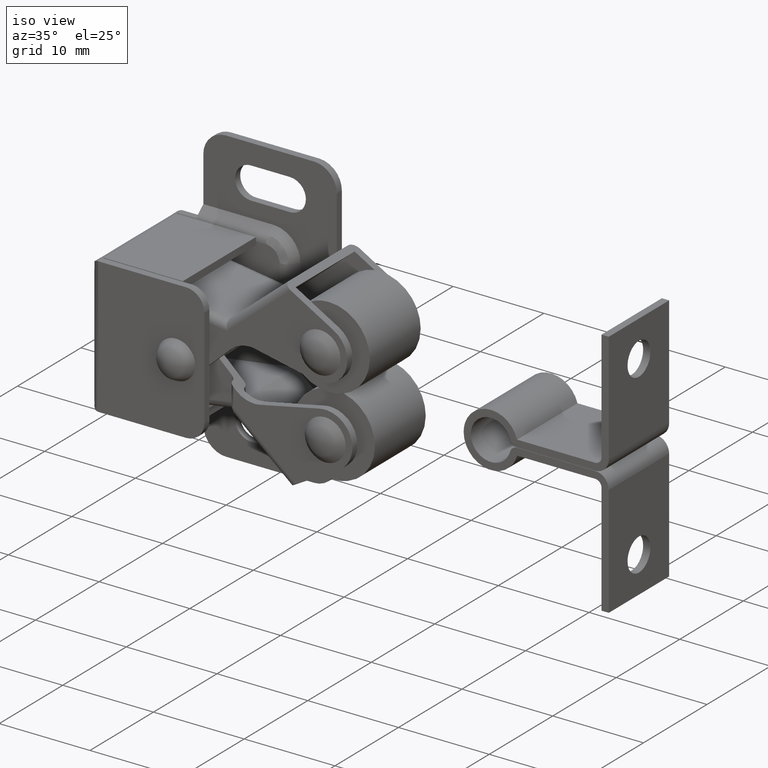
[diagram: clean part render]
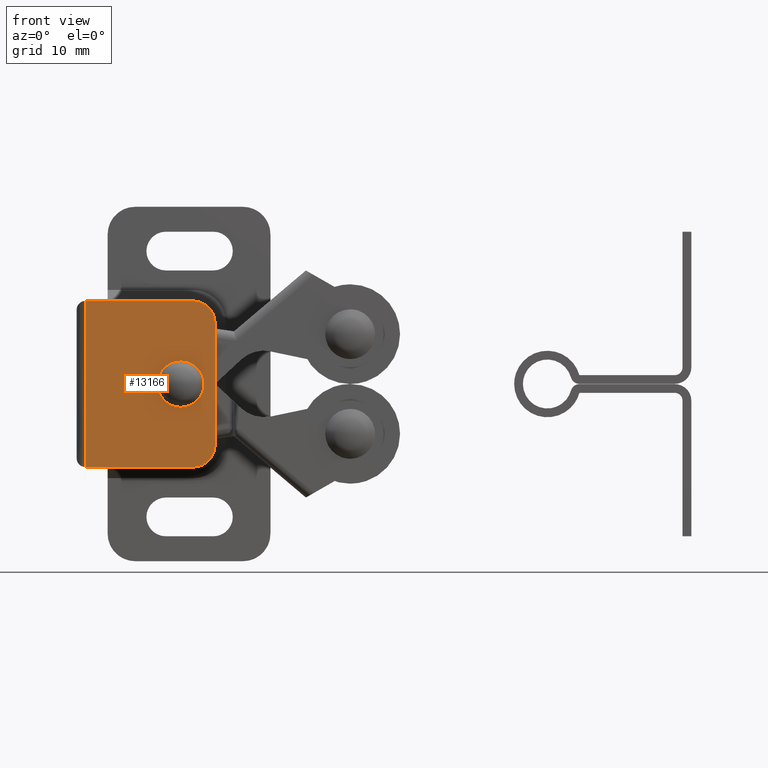
[diagram: tour spotlight — one face highlighted and labeled with its STEP entity id]
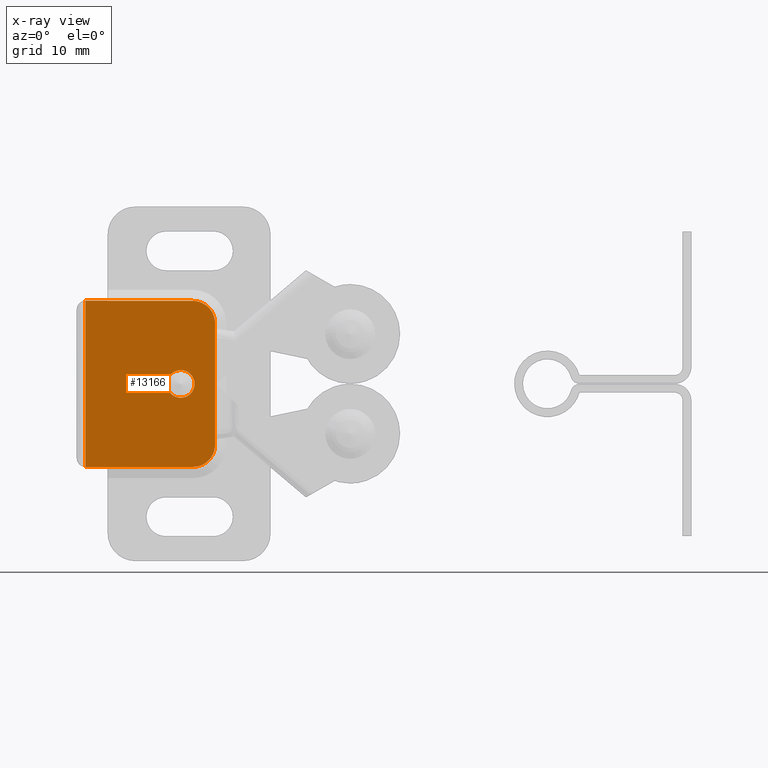
[diagram: x-ray of the same camera — body ghosted, this tour face saturated]
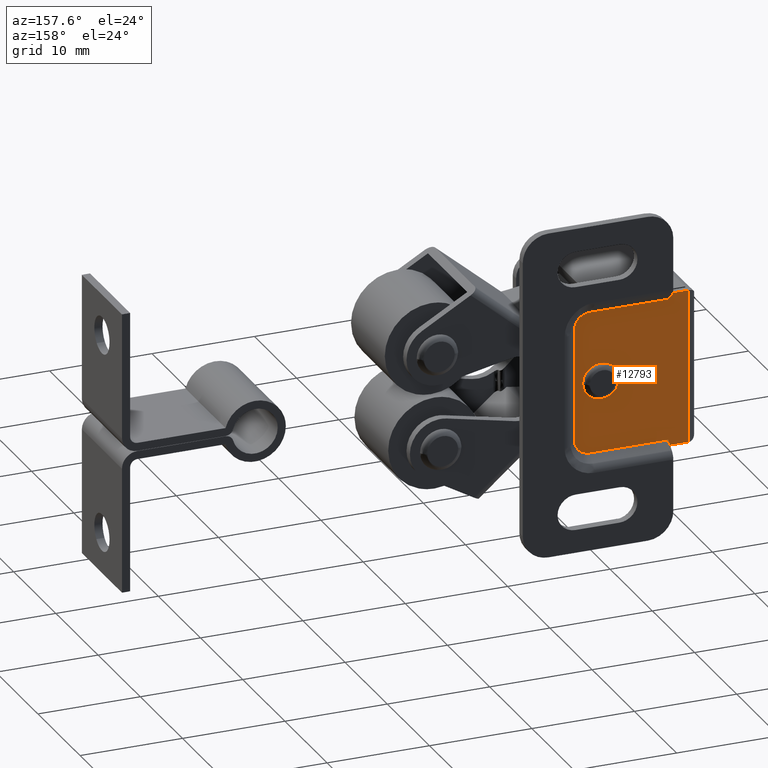
[diagram: tour spotlight — one face highlighted and labeled with its STEP entity id]
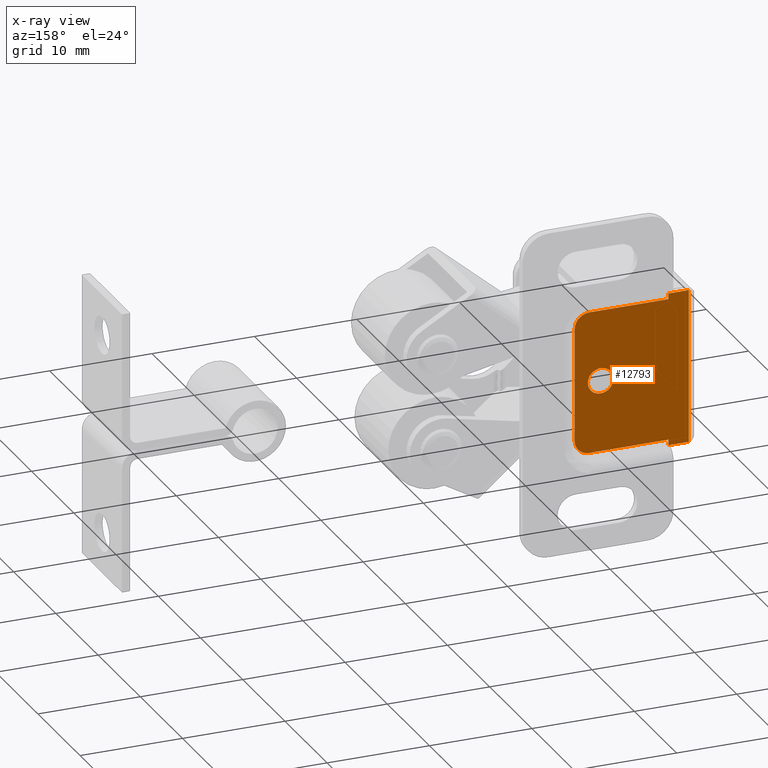
[diagram: x-ray of the same camera — body ghosted, this tour face saturated]
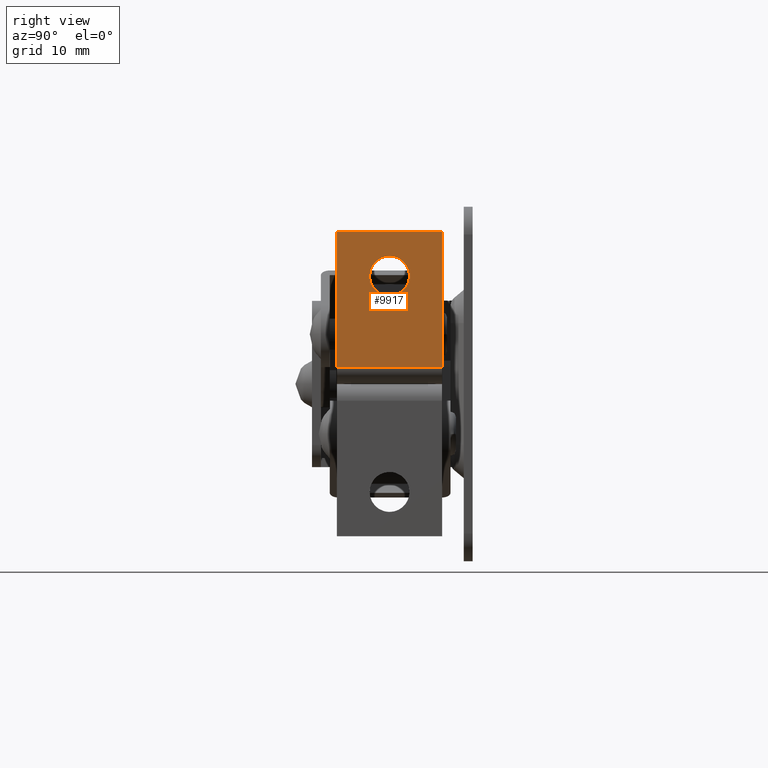
[diagram: tour spotlight — one face highlighted and labeled with its STEP entity id]
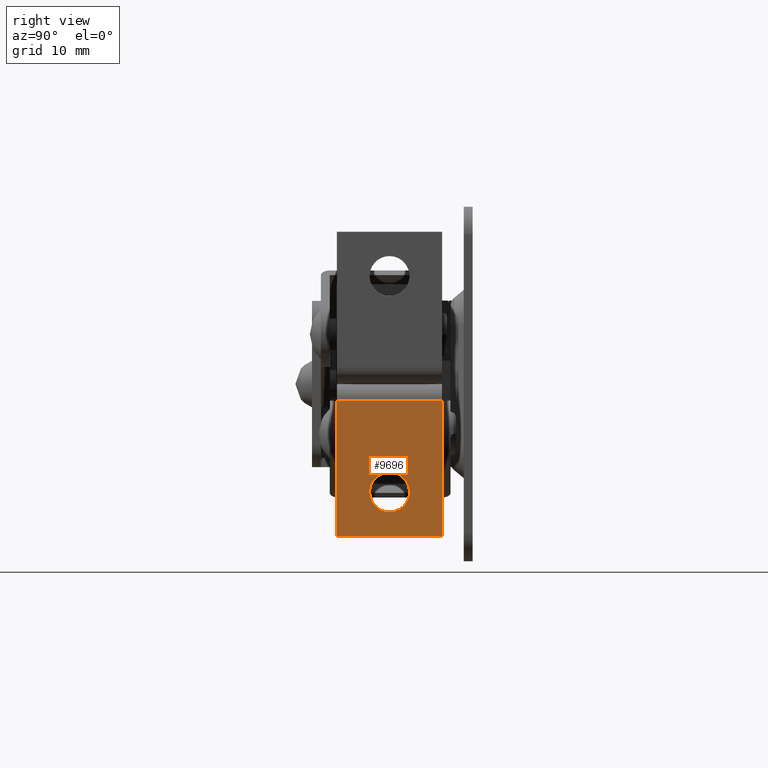
[diagram: tour spotlight — one face highlighted and labeled with its STEP entity id]
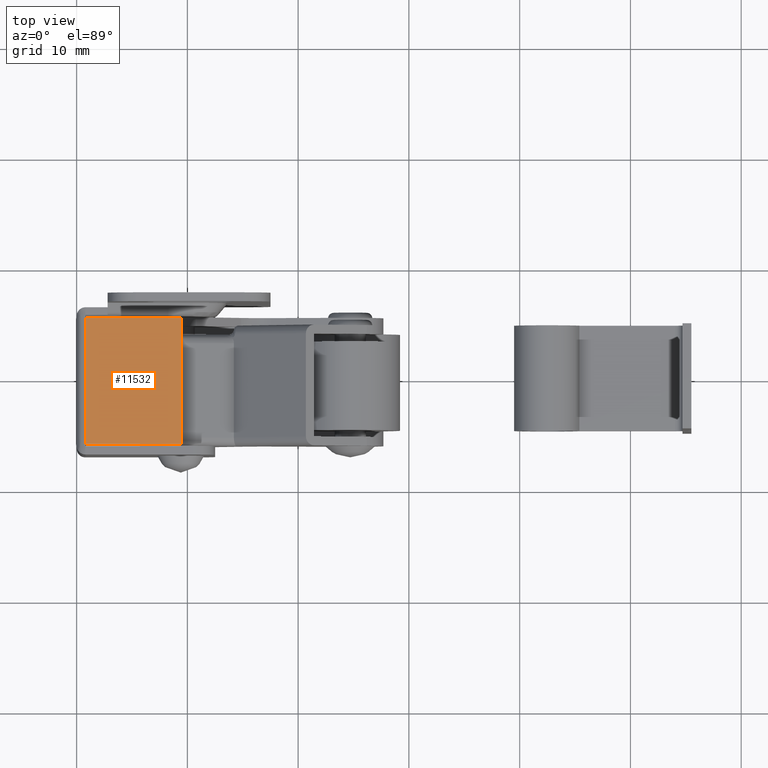
[diagram: tour spotlight — one face highlighted and labeled with its STEP entity id]
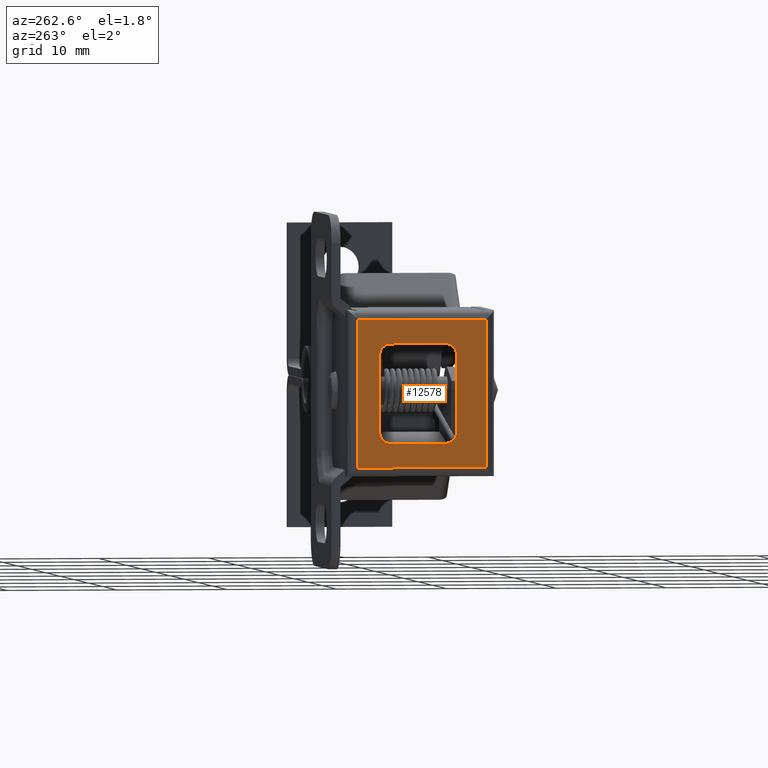
[diagram: tour spotlight — one face highlighted and labeled with its STEP entity id]
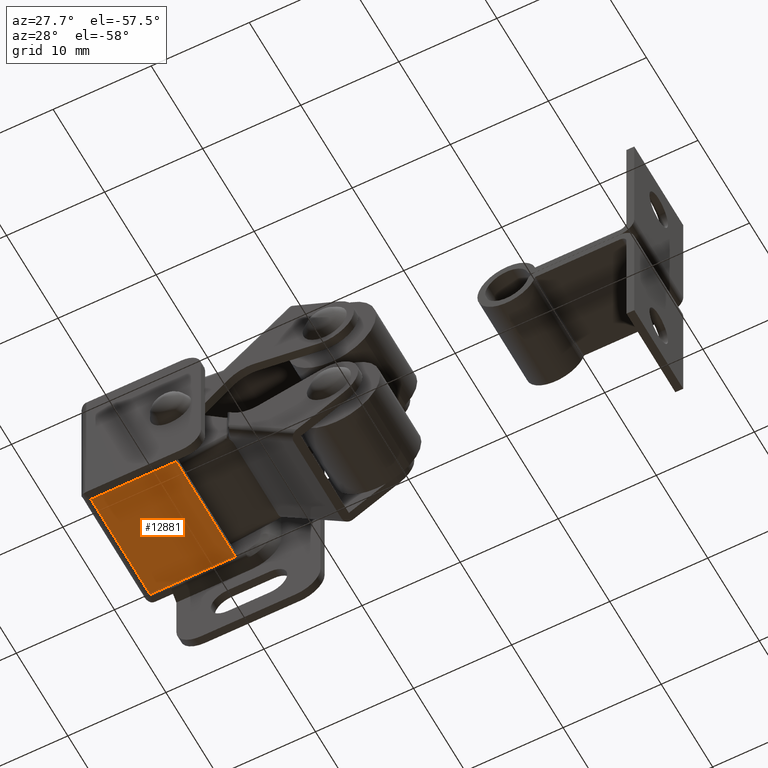
[diagram: tour spotlight — one face highlighted and labeled with its STEP entity id]
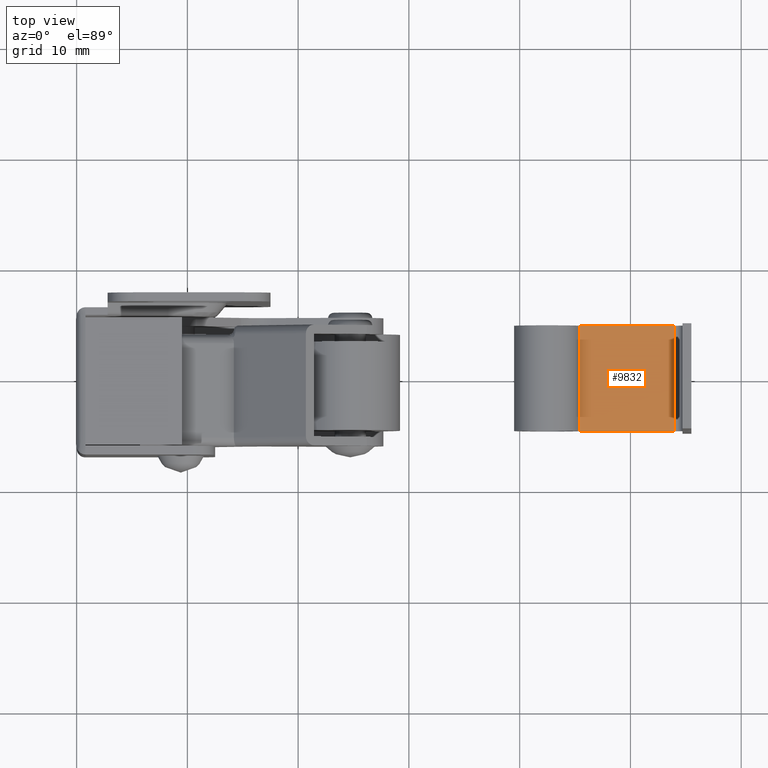
[diagram: tour spotlight — one face highlighted and labeled with its STEP entity id]
A machine part: a face-by-face anatomy tour. The part has 238 B-rep faces; the first image is the clean iso view, then the 8 largest visible faces are spotlighted one at a time (largest first), each with its STEP entity span.

Face 1 — front view, entity #13166. An x-ray twin of the same camera follows (body ghosted, this face saturated) — the face is partly hidden behind the body. In plain terms, the highlighted face is a freeform B-spline surface patch.
Definition (entity closure, byte-faithful):
#9951=CARTESIAN_POINT('',(10.260451896368879,-6.999999999999900,-0.906717720188446));
#9952=VERTEX_POINT('',#9951);
#9958=CARTESIAN_POINT('',(10.650008999998979,-6.999999999999900,0.000001598966545));
#9959=VERTEX_POINT('',#9958);
#9960=CARTESIAN_POINT('',(10.260451896368879,-6.999999999999900,-0.906717720188446));
#9961=CARTESIAN_POINT('',(10.375552104167820,-6.999999999999905,-0.797697708605429));
#9962=CARTESIAN_POINT('',(10.575754715029470,-6.999999999999894,-0.517591940662151));
#9963=CARTESIAN_POINT('',(10.650253041269400,-6.999999999999897,-0.179682385088657));
#9964=CARTESIAN_POINT('',(10.650008999998979,-6.999999999999900,0.000001598966545));
#9965=B_SPLINE_CURVE_WITH_KNOTS('',3,(#9960,#9961,#9962,#9963,#9964),.UNSPECIFIED.,.F.,.U.,(4,1,4),(0.000000036804504,0.475555848043880,1.014501313537581),.UNSPECIFIED.);
#9966=EDGE_CURVE('',#9952,#9959,#9965,.T.);
#9968=CARTESIAN_POINT('',(9.400009000000001,-6.999999999999901,1.250000000000000));
#9969=VERTEX_POINT('',#9968);
#9970=CARTESIAN_POINT('',(10.650008999998979,-6.999999999999900,0.000001598966545));
#9971=CARTESIAN_POINT('',(10.650048516078391,-6.999999999999906,0.112495065539745));
#9972=CARTESIAN_POINT('',(10.623587687548760,-6.999999999999896,0.306773118980511));
#9973=CARTESIAN_POINT('',(10.508974957360570,-6.999999999999905,0.604008709195143));
#9974=CARTESIAN_POINT('',(10.300682598218041,-6.999999999999912,0.899895962662093));
#9975=CARTESIAN_POINT('',(9.997254054696624,-6.999999999999855,1.119239407872755));
#9976=CARTESIAN_POINT('',(9.676108736355243,-6.999999999999978,1.229564850944364));
#9977=CARTESIAN_POINT('',(9.492047348585006,-6.999999999999819,1.250015032420264));
#9978=CARTESIAN_POINT('',(9.400009000000001,-6.999999999999901,1.250000000000000));
#9979=B_SPLINE_CURVE_WITH_KNOTS('',3,(#9970,#9971,#9972,#9973,#9974,#9975,#9976,#9977,#9978),.UNSPECIFIED.,.F.,.U.,(4,1,1,1,1,1,4),(0.000000130915895,0.337474822905873,0.582930732258959,0.951109413071355,1.411296304488773,1.687424746442384,1.963543779201057),.UNSPECIFIED.);
#9980=EDGE_CURVE('',#9959,#9969,#9979,.T.);
#9982=CARTESIAN_POINT('',(8.539566103631120,-6.999999999999901,0.906717720188447));
#9983=VERTEX_POINT('',#9982);
#9984=CARTESIAN_POINT('',(9.400009000000001,-6.999999999999901,1.250000000000000));
#9985=CARTESIAN_POINT('',(9.231923357712031,-6.999999999999885,1.250206807994212));
#9986=CARTESIAN_POINT('',(8.915771263836483,-6.999999999999922,1.185141089100294));
#9987=CARTESIAN_POINT('',(8.647060157619160,-6.999999999999894,1.008891805236744));
#9988=CARTESIAN_POINT('',(8.539566103631120,-6.999999999999901,0.906717720188447));
#9989=B_SPLINE_CURVE_WITH_KNOTS('',3,(#9984,#9985,#9986,#9987,#9988),.UNSPECIFIED.,.F.,.U.,(4,1,4),(0.000000035580906,0.504170169241840,0.949044816129754),.UNSPECIFIED.);
#9990=EDGE_CURVE('',#9969,#9983,#9989,.T.);
#10077=CARTESIAN_POINT('',(8.150009000001024,-6.999999999999901,-0.000001598966540));
#10078=VERTEX_POINT('',#10077);
#10079=CARTESIAN_POINT('',(8.539566103631120,-6.999999999999901,0.906717720188447));
#10080=CARTESIAN_POINT('',(8.455217562782295,-6.999999999999909,0.826727809051676));
#10081=CARTESIAN_POINT('',(8.329046496842885,-6.999999999999896,0.668042886169320));
#10082=CARTESIAN_POINT('',(8.186974719049500,-6.999999999999901,0.359243666924946));
#10083=CARTESIAN_POINT('',(8.149932962618596,-6.999999999999900,0.137389410625462));
#10084=CARTESIAN_POINT('',(8.150009000001024,-6.999999999999901,-0.000001598966540));
#10085=B_SPLINE_CURVE_WITH_KNOTS('',3,(#10079,#10080,#10081,#10082,#10083,#10084),.UNSPECIFIED.,.F.,.U.,(4,1,1,4),(0.000000036804655,0.348736204169615,0.602350686728388,1.014501313537577),.UNSPECIFIED.);
#10086=EDGE_CURVE('',#9983,#10078,#10085,.T.);
#10088=CARTESIAN_POINT('',(9.400009000000001,-6.999999999999901,-1.250000000000000));
#10089=VERTEX_POINT('',#10088);
#10090=CARTESIAN_POINT('',(8.150009000001024,-6.999999999999901,-0.000001598966540));
#10091=CARTESIAN_POINT('',(8.149994109984563,-6.999999999999903,-0.092039528301709));
#10092=CARTESIAN_POINT('',(8.170444115492442,-6.999999999999898,-0.276102234195852));
#10093=CARTESIAN_POINT('',(8.280770705223350,-6.999999999999909,-0.597245879257343));
#10094=CARTESIAN_POINT('',(8.500113533591998,-6.999999999999902,-0.900675961966943));
#10095=CARTESIAN_POINT('',(8.796002205438487,-6.999999999999894,-1.108965615604990));
#10096=CARTESIAN_POINT('',(9.093236805991062,-6.999999999999904,-1.223579656686771));
#10097=CARTESIAN_POINT('',(9.287515503426661,-6.999999999999878,-1.250039805766860));
#10098=CARTESIAN_POINT('',(9.400009000000001,-6.999999999999901,-1.250000000000000));
#10099=B_SPLINE_CURVE_WITH_KNOTS('',3,(#10090,#10091,#10092,#10093,#10094,#10095,#10096,#10097,#10098),.UNSPECIFIED.,.F.,.U.,(4,1,1,1,1,1,4),(0.000000130914297,0.276120640592534,0.552247336763290,1.012434347967933,1.380613469423143,1.626068974840289,1.963543779201059),.UNSPECIFIED.);
#10100=EDGE_CURVE('',#10078,#10089,#10099,.T.);
#10102=CARTESIAN_POINT('',(9.400009000000001,-6.999999999999901,-1.250000000000000));
#10103=CARTESIAN_POINT('',(9.528533272338404,-6.999999999999905,-1.250066000744778));
#10104=CARTESIAN_POINT('',(9.745974295358957,-6.999999999999917,-1.216151803033096));
#10105=CARTESIAN_POINT('',(10.037086900865679,-6.999999999999879,-1.087802895850259));
#10106=CARTESIAN_POINT('',(10.188756233057450,-6.999999999999913,-0.974783487670822));
#10107=CARTESIAN_POINT('',(10.260451896368879,-6.999999999999900,-0.906717720188446));
#10108=B_SPLINE_CURVE_WITH_KNOTS('',3,(#10102,#10103,#10104,#10105,#10106,#10107),.UNSPECIFIED.,.F.,.U.,(4,1,1,4),(0.000000035580945,0.385556276290383,0.652464573457703,0.949044816129755),.UNSPECIFIED.);
#10109=EDGE_CURVE('',#10089,#9952,#10108,.T.);
#11997=CARTESIAN_POINT('',(0.800000000000023,-6.999999999999890,7.500000000000000));
#11998=VERTEX_POINT('',#11997);
#12614=CARTESIAN_POINT('',(10.499999895280260,-6.999999999999901,7.500000000000000));
#12615=VERTEX_POINT('',#12614);
#12616=CARTESIAN_POINT('',(10.499999895280260,-6.999999999999901,7.500000000000000));
#12617=CARTESIAN_POINT('',(0.800000000000023,-6.999999999999890,7.500000000000000));
#12618=QUASI_UNIFORM_CURVE('',1,(#12616,#12617),.UNSPECIFIED.,.F.,.U.);
#12619=EDGE_CURVE('',#12615,#11998,#12618,.T.);
#12929=CARTESIAN_POINT('',(0.800000000000023,-7.0,-7.500000000000000));
#12930=VERTEX_POINT('',#12929);
#12944=CARTESIAN_POINT('',(0.800000000000023,-6.999999999999890,7.500000000000000));
#12945=CARTESIAN_POINT('',(0.800000000000023,-7.0,-7.500000000000000));
#12946=QUASI_UNIFORM_CURVE('',1,(#12944,#12945),.UNSPECIFIED.,.F.,.U.);
#12947=EDGE_CURVE('',#11998,#12930,#12946,.T.);
#12997=CARTESIAN_POINT('',(10.499999895280199,-6.999999999999901,-7.500000000000000));
#12998=VERTEX_POINT('',#12997);
#12999=CARTESIAN_POINT('',(12.500000000000000,-6.999999999999901,-5.500000000000000));
#13000=VERTEX_POINT('',#12999);
#13001=CARTESIAN_POINT('',(10.499999895280199,-6.999999999999901,-7.500000000000000));
#13002=CARTESIAN_POINT('',(10.696362763277040,-6.999999999999908,-7.500085810188710));
#13003=CARTESIAN_POINT('',(10.990819173489770,-6.999999999999894,-7.456252105646146));
#13004=CARTESIAN_POINT('',(11.419460213350940,-6.999999999999911,-7.290937325695460));
#13005=CARTESIAN_POINT('',(11.753722514033599,-6.999999999999903,-7.079250310751807));
#13006=CARTESIAN_POINT('',(12.067621401221979,-6.999999999999914,-6.765345448968428));
#13007=CARTESIAN_POINT('',(12.301046458991500,-6.999999999999890,-6.406572310998268));
#13008=CARTESIAN_POINT('',(12.461632899948480,-6.999999999999903,-5.974491641360571));
#13009=CARTESIAN_POINT('',(12.500038265631121,-6.999999999999902,-5.663628330913886));
#13010=CARTESIAN_POINT('',(12.500000000000000,-6.999999999999901,-5.500000000000000));
#13011=B_SPLINE_CURVE_WITH_KNOTS('',3,(#13001,#13002,#13003,#13004,#13005,#13006,#13007,#13008,#13009,#13010),.UNSPECIFIED.,.F.,.U.,(4,1,1,1,1,1,1,4),(0.000000038960029,0.589058902062719,0.883597830998880,1.374490490606048,1.767184658442321,2.208987002806219,2.650788209451793,3.141671547692424),.UNSPECIFIED.);
#13012=EDGE_CURVE('',#12998,#13000,#13011,.T.);
#13049=CARTESIAN_POINT('',(12.500000000000000,-6.999999999999901,5.500000000000000));
#13050=VERTEX_POINT('',#13049);
#13051=CARTESIAN_POINT('',(12.500000000000000,-6.999999999999901,5.500000000000000));
#13052=CARTESIAN_POINT('',(12.500000000000000,-6.999999999999901,-5.500000000000000));
#13053=QUASI_UNIFORM_CURVE('',1,(#13051,#13052),.UNSPECIFIED.,.F.,.U.);
#13054=EDGE_CURVE('',#13050,#13000,#13053,.T.);
#13086=CARTESIAN_POINT('',(12.500000000000000,-6.999999999999901,5.500000000000000));
#13087=CARTESIAN_POINT('',(12.500086419889969,-6.999999999999899,5.696355907688438));
#13088=CARTESIAN_POINT('',(12.441701836350459,-6.999999999999903,6.089016432297958));
#13089=CARTESIAN_POINT('',(12.215464718266899,-6.999999999999913,6.567509383859984));
#13090=CARTESIAN_POINT('',(11.923314404222531,-6.999999999999885,6.923322114039701));
#13091=CARTESIAN_POINT('',(11.580194932415480,-6.999999999999909,7.204983021240858));
#13092=CARTESIAN_POINT('',(11.105353910341620,-6.999999999999901,7.436754857323813));
#13093=CARTESIAN_POINT('',(10.712726158746550,-6.999999999999899,7.500118418366789));
#13094=CARTESIAN_POINT('',(10.499999895280260,-6.999999999999901,7.500000000000000));
#13095=B_SPLINE_CURVE_WITH_KNOTS('',3,(#13086,#13087,#13088,#13089,#13090,#13091,#13092,#13093,#13094),.UNSPECIFIED.,.F.,.U.,(4,1,1,1,1,1,4),(0.000000038960351,0.589058902062855,1.178135701813619,1.570835805636024,1.963540426722363,2.503520350485548,3.141671547692392),.UNSPECIFIED.);
#13096=EDGE_CURVE('',#13050,#12615,#13095,.T.);
#13141=CARTESIAN_POINT('',(0.215585022676894,-6.999999999999890,8.249249970927089));
#13142=CARTESIAN_POINT('',(0.215585022676894,-6.999999999999890,-8.249250373258443));
#13143=CARTESIAN_POINT('',(13.084415291141580,-6.999999999999890,8.249249970927089));
#13144=CARTESIAN_POINT('',(13.084415291141580,-6.999999999999890,-8.249250373258443));
#13145=B_SPLINE_SURFACE_WITH_KNOTS('',1,1,((#13141,#13143),(#13142,#13144)),.UNSPECIFIED.,.F.,.F.,.U.,(2,2),(2,2),(0.0,16.498500344185530),(0.0,12.868830268464690),.UNSPECIFIED.);
#13146=ORIENTED_EDGE('',*,*,#12619,.T.);
#13147=ORIENTED_EDGE('',*,*,#12947,.T.);
#13148=CARTESIAN_POINT('',(10.499999895280199,-6.999999999999901,-7.500000000000000));
#13149=CARTESIAN_POINT('',(0.800000000000023,-7.0,-7.500000000000000));
#13150=QUASI_UNIFORM_CURVE('',1,(#13148,#13149),.UNSPECIFIED.,.F.,.U.);
#13151=EDGE_CURVE('',#12998,#12930,#13150,.T.);
#13152=ORIENTED_EDGE('',*,*,#13151,.F.);
#13153=ORIENTED_EDGE('',*,*,#13012,.T.);
#13154=ORIENTED_EDGE('',*,*,#13054,.F.);
#13155=ORIENTED_EDGE('',*,*,#13096,.T.);
#13156=EDGE_LOOP('',(#13146,#13147,#13152,#13153,#13154,#13155));
#13157=FACE_OUTER_BOUND('',#13156,.T.);
#13158=ORIENTED_EDGE('',*,*,#9980,.F.);
#13159=ORIENTED_EDGE('',*,*,#9966,.F.);
#13160=ORIENTED_EDGE('',*,*,#10109,.F.);
#13161=ORIENTED_EDGE('',*,*,#10100,.F.);
#13162=ORIENTED_EDGE('',*,*,#10086,.F.);
#13163=ORIENTED_EDGE('',*,*,#9990,.F.);
#13164=EDGE_LOOP('',(#13158,#13159,#13160,#13161,#13162,#13163));
#13165=FACE_BOUND('',#13164,.T.);
#13166=ADVANCED_FACE('',(#13157,#13165),#13145,.T.);

Face 2 — auxiliary view, entity #12793. An x-ray twin of the same camera follows (body ghosted, this face saturated) — the face is partly hidden behind the body. In plain terms, the highlighted face is a freeform B-spline surface patch.
Definition (entity closure, byte-faithful):
#10133=CARTESIAN_POINT('',(9.400009000000210,6.300000000010190,1.250000000000000));
#10134=VERTEX_POINT('',#10133);
#10135=CARTESIAN_POINT('',(10.276145368924411,6.300000000036041,0.891562708869255));
#10136=VERTEX_POINT('',#10135);
#10137=CARTESIAN_POINT('',(9.400009000000210,6.300000000010190,1.250000000000000));
#10138=CARTESIAN_POINT('',(9.511255461255791,6.300000000013473,1.250037987077530));
#10139=CARTESIAN_POINT('',(9.703375518483064,6.300000000019139,1.224169056616240));
#10140=CARTESIAN_POINT('',(10.007221413776129,6.300000000028109,1.108413585556358));
#10141=CARTESIAN_POINT('',(10.182412828122450,6.300000000033276,0.983763358356194));
#10142=CARTESIAN_POINT('',(10.276145368924411,6.300000000036041,0.891562708869255));
#10143=B_SPLINE_CURVE_WITH_KNOTS('',3,(#10137,#10138,#10139,#10140,#10141,#10142),.UNSPECIFIED.,.F.,.U.,(4,1,1,4),(0.000000029557126,0.333735921465421,0.576441719781223,0.970863161275954),.UNSPECIFIED.);
#10144=EDGE_CURVE('',#10134,#10136,#10143,.T.);
#10188=CARTESIAN_POINT('',(8.523872631076012,6.300000000036043,-0.891562708869256));
#10189=VERTEX_POINT('',#10188);
#10195=CARTESIAN_POINT('',(8.150009000001235,6.300000000010191,0.000001598966540));
#10196=VERTEX_POINT('',#10195);
#10197=CARTESIAN_POINT('',(8.523872631076012,6.300000000036043,-0.891562708869256));
#10198=CARTESIAN_POINT('',(8.398295352971793,6.300000000032466,-0.768502542199102));
#10199=CARTESIAN_POINT('',(8.212442290701519,6.300000000024299,-0.485885448687155));
#10200=CARTESIAN_POINT('',(8.149866722048929,6.300000000014672,-0.155124166702130));
#10201=CARTESIAN_POINT('',(8.150009000001235,6.300000000010191,0.000001598966540));
#10202=B_SPLINE_CURVE_WITH_KNOTS('',3,(#10197,#10198,#10199,#10200,#10201),.UNSPECIFIED.,.F.,.U.,(4,1,4),(0.000000033041241,0.527354945435617,0.992682822092760),.UNSPECIFIED.);
#10203=EDGE_CURVE('',#10189,#10196,#10202,.T.);
#10205=CARTESIAN_POINT('',(8.150009000001235,6.300000000010191,0.000001598966540));
#10206=CARTESIAN_POINT('',(8.149875426761575,6.300000000010188,0.153425509446331));
#10207=CARTESIAN_POINT('',(8.193880234204810,6.300000000010184,0.388517207809387));
#10208=CARTESIAN_POINT('',(8.355594730875989,6.300000000010209,0.709785594178392));
#10209=CARTESIAN_POINT('',(8.578369777060138,6.300000000010157,0.968147073715697));
#10210=CARTESIAN_POINT('',(8.939919546531945,6.300000000010214,1.190914781341981));
#10211=CARTESIAN_POINT('',(9.236359378010510,6.300000000010183,1.250170234759835));
#10212=CARTESIAN_POINT('',(9.400009000000210,6.300000000010190,1.250000000000000));
#10213=B_SPLINE_CURVE_WITH_KNOTS('',3,(#10205,#10206,#10207,#10208,#10209,#10210,#10211,#10212),.UNSPECIFIED.,.F.,.U.,(4,1,1,1,1,4),(0.000000130914735,0.460203822380630,0.705653462495398,1.073790090839121,1.472657866050646,1.963543779201058),.UNSPECIFIED.);
#10214=EDGE_CURVE('',#10196,#10134,#10213,.T.);
#10237=CARTESIAN_POINT('',(10.650008999999191,6.300000000010189,-0.000001598966545));
#10238=VERTEX_POINT('',#10237);
#10239=CARTESIAN_POINT('',(10.276145368924411,6.300000000036041,0.891562708869255));
#10240=CARTESIAN_POINT('',(10.386882192617660,6.300000000032897,0.782933131988382));
#10241=CARTESIAN_POINT('',(10.578971494631750,6.300000000024859,0.506477591389149));
#10242=CARTESIAN_POINT('',(10.650230709643459,6.300000000015301,0.175815090150190));
#10243=CARTESIAN_POINT('',(10.650008999999191,6.300000000010189,-0.000001598966545));
#10244=B_SPLINE_CURVE_WITH_KNOTS('',3,(#10239,#10240,#10241,#10242,#10243),.UNSPECIFIED.,.F.,.U.,(4,1,4),(0.000000033041360,0.465327909697544,0.992682822092767),.UNSPECIFIED.);
#10245=EDGE_CURVE('',#10136,#10238,#10244,.T.);
#10247=CARTESIAN_POINT('',(9.400009000000210,6.300000000010190,-1.250000000000000));
#10248=VERTEX_POINT('',#10247);
#10249=CARTESIAN_POINT('',(10.650008999999191,6.300000000010189,-0.000001598966545));
#10250=CARTESIAN_POINT('',(10.650296298995530,6.300000000010198,-0.184144041392265));
#10251=CARTESIAN_POINT('',(10.592499245646209,6.300000000010166,-0.439554077845210));
#10252=CARTESIAN_POINT('',(10.411523766210610,6.300000000010211,-0.749922133728717));
#10253=CARTESIAN_POINT('',(10.238553663045741,6.300000000010181,-0.940778866757709));
#10254=CARTESIAN_POINT('',(9.986519830764694,6.300000000010191,-1.118327411605131));
#10255=CARTESIAN_POINT('',(9.706816583187528,6.300000000010189,-1.226209081739210));
#10256=CARTESIAN_POINT('',(9.492044280406793,6.300000000010178,-1.250009156324018));
#10257=CARTESIAN_POINT('',(9.400009000000210,6.300000000010190,-1.250000000000000));
#10258=B_SPLINE_CURVE_WITH_KNOTS('',3,(#10249,#10250,#10251,#10252,#10253,#10254,#10255,#10256,#10257),.UNSPECIFIED.,.F.,.U.,(4,1,1,1,1,1,4),(0.000000130914908,0.552247336763784,0.767026615690632,1.073790090839299,1.319246757904335,1.687424746442381,1.963543779201058),.UNSPECIFIED.);
#10259=EDGE_CURVE('',#10238,#10248,#10258,.T.);
#10261=CARTESIAN_POINT('',(9.400009000000210,6.300000000010190,-1.250000000000000));
#10262=CARTESIAN_POINT('',(9.288762223820198,6.300000000013477,-1.250039109164683));
#10263=CARTESIAN_POINT('',(9.096642981809834,6.300000000019141,-1.224167800180560));
#10264=CARTESIAN_POINT('',(8.792796030748278,6.300000000028110,-1.108414320634998));
#10265=CARTESIAN_POINT('',(8.617605839679685,6.300000000033270,-0.983763344493217));
#10266=CARTESIAN_POINT('',(8.523872631076012,6.300000000036043,-0.891562708869256));
#10267=B_SPLINE_CURVE_WITH_KNOTS('',3,(#10261,#10262,#10263,#10264,#10265,#10266),.UNSPECIFIED.,.F.,.U.,(4,1,1,4),(0.000000029556688,0.333735921465257,0.576441719781175,0.970863161275953),.UNSPECIFIED.);
#10268=EDGE_CURVE('',#10248,#10189,#10267,.T.);
#11260=CARTESIAN_POINT('',(2.800003000000000,6.300000000000000,-6.942176752718610));
#11261=VERTEX_POINT('',#11260);
#11301=CARTESIAN_POINT('',(2.800003000000000,6.300000000000000,-7.500000000000000));
#11302=VERTEX_POINT('',#11301);
#11308=CARTESIAN_POINT('',(2.800003000000000,6.300000000000000,-6.942176752718610));
#11309=CARTESIAN_POINT('',(2.800003000000000,6.300000000000000,-7.500000000000000));
#11310=QUASI_UNIFORM_CURVE('',1,(#11308,#11309),.UNSPECIFIED.,.F.,.U.);
#11311=EDGE_CURVE('',#11261,#11302,#11310,.T.);
#11463=CARTESIAN_POINT('',(2.800003000000000,6.300000000000000,6.942176752718591));
#11464=VERTEX_POINT('',#11463);
#11470=CARTESIAN_POINT('',(2.800003000000000,6.300000000000000,7.500000000000000));
#11471=VERTEX_POINT('',#11470);
#11472=CARTESIAN_POINT('',(2.800003000000000,6.300000000000000,7.500000000000000));
#11473=CARTESIAN_POINT('',(2.800003000000000,6.300000000000000,6.942176752718591));
#11474=QUASI_UNIFORM_CURVE('',1,(#11472,#11473),.UNSPECIFIED.,.F.,.U.);
#11475=EDGE_CURVE('',#11471,#11464,#11474,.T.);
#11538=CARTESIAN_POINT('',(0.800000000000000,6.300000000000000,7.500000000000000));
#11539=VERTEX_POINT('',#11538);
#11553=CARTESIAN_POINT('',(0.800000000000000,6.300000000000000,7.500000000000000));
#11554=CARTESIAN_POINT('',(2.800003000000000,6.300000000000000,7.500000000000000));
#11555=QUASI_UNIFORM_CURVE('',1,(#11553,#11554),.UNSPECIFIED.,.F.,.U.);
#11556=EDGE_CURVE('',#11539,#11471,#11555,.T.);
#12586=CARTESIAN_POINT('',(0.800000000000000,6.300000000000000,-7.500000000000000));
#12587=VERTEX_POINT('',#12586);
#12593=CARTESIAN_POINT('',(2.800003000000000,6.300000000000000,-7.500000000000000));
#12594=CARTESIAN_POINT('',(0.800000000000000,6.300000000000000,-7.500000000000000));
#12595=QUASI_UNIFORM_CURVE('',1,(#12593,#12594),.UNSPECIFIED.,.F.,.U.);
#12596=EDGE_CURVE('',#11302,#12587,#12595,.T.);
#12634=CARTESIAN_POINT('',(10.499999872127940,6.300000000000000,-6.942176752718599));
#12635=VERTEX_POINT('',#12634);
#12643=CARTESIAN_POINT('',(10.499999872127940,6.300000000000000,-6.942176752718599));
#12644=CARTESIAN_POINT('',(2.800003000000000,6.300000000000000,-6.942176752718610));
#12645=QUASI_UNIFORM_CURVE('',1,(#12643,#12644),.UNSPECIFIED.,.F.,.U.);
#12646=EDGE_CURVE('',#12635,#11261,#12645,.T.);
#12665=CARTESIAN_POINT('',(11.942176752718581,6.300000000000000,-5.500000000000000));
#12666=VERTEX_POINT('',#12665);
#12674=CARTESIAN_POINT('',(11.942176752718581,6.300000000000000,-5.500000000000000));
#12675=CARTESIAN_POINT('',(11.942417276078690,6.300000000000006,-5.700602613679434));
#12676=CARTESIAN_POINT('',(11.864627796078160,6.299999999999987,-6.066213260932574));
#12677=CARTESIAN_POINT('',(11.605153964113709,6.300000000000019,-6.454439237530985));
#12678=CARTESIAN_POINT('',(11.317807141681090,6.299999999999980,-6.702192647077887));
#12679=CARTESIAN_POINT('',(10.971857834663631,6.300000000000037,-6.887165626418383));
#12680=CARTESIAN_POINT('',(10.677004729436311,6.299999999999962,-6.942337321275983));
#12681=CARTESIAN_POINT('',(10.499999872127940,6.300000000000000,-6.942176752718599));
#12682=B_SPLINE_CURVE_WITH_KNOTS('',3,(#12674,#12675,#12676,#12677,#12678,#12679,#12680,#12681),.UNSPECIFIED.,.F.,.U.,(4,1,1,1,1,4),(0.000000100685654,0.601755014129014,1.097326913927898,1.380490077271872,1.734466371098902,2.265422864896758),.UNSPECIFIED.);
#12683=EDGE_CURVE('',#12666,#12635,#12682,.T.);
#12693=CARTESIAN_POINT('',(11.942176752718600,6.300000000000000,5.500000000000000));
#12694=VERTEX_POINT('',#12693);
#12702=CARTESIAN_POINT('',(11.942176752718600,6.300000000000000,5.500000000000000));
#12703=CARTESIAN_POINT('',(11.942176752718581,6.300000000000000,-5.500000000000000));
#12704=QUASI_UNIFORM_CURVE('',1,(#12702,#12703),.UNSPECIFIED.,.F.,.U.);
#12705=EDGE_CURVE('',#12694,#12666,#12704,.T.);
#12724=CARTESIAN_POINT('',(10.499999872127940,6.300000000000000,6.942176752718599));
#12725=VERTEX_POINT('',#12724);
#12733=CARTESIAN_POINT('',(10.499999872127940,6.300000000000000,6.942176752718599));
#12734=CARTESIAN_POINT('',(10.665201382059760,6.300000000000003,6.942304167661705));
#12735=CARTESIAN_POINT('',(10.936485629970960,6.300000000000000,6.895009081294131));
#12736=CARTESIAN_POINT('',(11.267195546735699,6.299999999999998,6.733575177755228));
#12737=CARTESIAN_POINT('',(11.538268887085970,6.300000000000022,6.522071881754051));
#12738=CARTESIAN_POINT('',(11.758424405370301,6.299999999999968,6.240007747424489));
#12739=CARTESIAN_POINT('',(11.908490079517300,6.300000000000079,5.877537794874709));
#12740=CARTESIAN_POINT('',(11.942223396488551,6.299999999999934,5.629788542468305));
#12741=CARTESIAN_POINT('',(11.942176752718600,6.300000000000000,5.500000000000000));
#12742=B_SPLINE_CURVE_WITH_KNOTS('',3,(#12733,#12734,#12735,#12736,#12737,#12738,#12739,#12740,#12741),.UNSPECIFIED.,.F.,.U.,(4,1,1,1,1,1,4),(0.000000100684735,0.495558428741579,0.814148144048131,1.097326913927754,1.522072658041181,1.876061690448355,2.265422864896789),.UNSPECIFIED.);
#12743=EDGE_CURVE('',#12725,#12694,#12742,.T.);
#12756=CARTESIAN_POINT('',(2.800003000000000,6.300000000000000,6.942176752718591));
#12757=CARTESIAN_POINT('',(10.499999872127940,6.300000000000000,6.942176752718599));
#12758=QUASI_UNIFORM_CURVE('',1,(#12756,#12757),.UNSPECIFIED.,.F.,.U.);
#12759=EDGE_CURVE('',#11464,#12725,#12758,.T.);
#12764=CARTESIAN_POINT('',(0.243448292797407,6.300000000000000,8.249249970927087));
#12765=CARTESIAN_POINT('',(12.498728758777659,6.300000000000000,8.249249970927087));
#12766=CARTESIAN_POINT('',(0.243448292797407,6.300000000000000,-8.249250373258441));
#12767=CARTESIAN_POINT('',(12.498728758777659,6.300000000000000,-8.249250373258441));
#12768=B_SPLINE_SURFACE_WITH_KNOTS('',1,1,((#12764,#12766),(#12765,#12767)),.UNSPECIFIED.,.F.,.F.,.U.,(2,2),(2,2),(0.0,12.255280465980251),(0.0,16.498500344185530),.UNSPECIFIED.);
#12769=ORIENTED_EDGE('',*,*,#12596,.T.);
#12770=CARTESIAN_POINT('',(0.800000000000000,6.300000000000000,-7.500000000000000));
#12771=CARTESIAN_POINT('',(0.800000000000000,6.300000000000000,7.500000000000000));
#12772=QUASI_UNIFORM_CURVE('',1,(#12770,#12771),.UNSPECIFIED.,.F.,.U.);
#12773=EDGE_CURVE('',#12587,#11539,#12772,.T.);
#12774=ORIENTED_EDGE('',*,*,#12773,.T.);
#12775=ORIENTED_EDGE('',*,*,#11556,.T.);
#12776=ORIENTED_EDGE('',*,*,#11475,.T.);
#12777=ORIENTED_EDGE('',*,*,#12759,.T.);
#12778=ORIENTED_EDGE('',*,*,#12743,.T.);
#12779=ORIENTED_EDGE('',*,*,#12705,.T.);
#12780=ORIENTED_EDGE('',*,*,#12683,.T.);
#12781=ORIENTED_EDGE('',*,*,#12646,.T.);
#12782=ORIENTED_EDGE('',*,*,#11311,.T.);
#12783=EDGE_LOOP('',(#12769,#12774,#12775,#12776,#12777,#12778,#12779,#12780,#12781,#12782));
#12784=FACE_OUTER_BOUND('',#12783,.T.);
#12785=ORIENTED_EDGE('',*,*,#10259,.F.);
#12786=ORIENTED_EDGE('',*,*,#10245,.F.);
#12787=ORIENTED_EDGE('',*,*,#10144,.F.);
#12788=ORIENTED_EDGE('',*,*,#10214,.F.);
#12789=ORIENTED_EDGE('',*,*,#10203,.F.);
#12790=ORIENTED_EDGE('',*,*,#10268,.F.);
#12791=EDGE_LOOP('',(#12785,#12786,#12787,#12788,#12789,#12790));
#12792=FACE_BOUND('',#12791,.T.);
#12793=ADVANCED_FACE('',(#12784,#12792),#12768,.T.);

Face 3 — right view, entity #9917. In plain terms, the highlighted face is a freeform B-spline surface patch.
Definition (entity closure, byte-faithful):
#8875=CARTESIAN_POINT('',(55.502127144606490,-1.239041966862156,8.444326334219650));
#8876=VERTEX_POINT('',#8875);
#8882=CARTESIAN_POINT('',(55.502127144606490,-0.000003997101005,7.950000000000000));
#8883=VERTEX_POINT('',#8882);
#8884=CARTESIAN_POINT('',(55.502127144606490,-0.000003997101005,7.950000000000000));
#8885=CARTESIAN_POINT('',(55.502127144606682,-0.156597964131028,7.949952885387736));
#8886=CARTESIAN_POINT('',(55.502127144606447,-0.427042491094711,7.985528310488800));
#8887=CARTESIAN_POINT('',(55.502127144606582,-0.855968125767423,8.144947767059710));
#8888=CARTESIAN_POINT('',(55.502127144606419,-1.104857815788467,8.316862879233220));
#8889=CARTESIAN_POINT('',(55.502127144606490,-1.239041966862156,8.444326334219650));
#8890=B_SPLINE_CURVE_WITH_KNOTS('',3,(#8884,#8885,#8886,#8887,#8888,#8889),.UNSPECIFIED.,.F.,.U.,(4,1,1,4),(0.000000016608426,0.469781827607104,0.811428132256571,1.366624670152034),.UNSPECIFIED.);
#8891=EDGE_CURVE('',#8883,#8876,#8890,.T.);
#8893=CARTESIAN_POINT('',(55.502127144606490,1.799996002898510,9.749998678213201));
#8894=VERTEX_POINT('',#8893);
#8895=CARTESIAN_POINT('',(55.502127144606490,1.799996002898510,9.749998678213201));
#8896=CARTESIAN_POINT('',(55.502127144606547,1.800093946198151,9.558547117486521));
#8897=CARTESIAN_POINT('',(55.502127144606519,1.740703915412133,9.190450432650193));
#8898=CARTESIAN_POINT('',(55.502127144606582,1.519860844170212,8.751641038139713));
#8899=CARTESIAN_POINT('',(55.502127144606312,1.249159861419986,8.437955591496865));
#8900=CARTESIAN_POINT('',(55.502127144606817,0.969203057658854,8.219476701475410));
#8901=CARTESIAN_POINT('',(55.502127144605957,0.559481050844454,8.013136660210067));
#8902=CARTESIAN_POINT('',(55.502127144606654,0.220918264802926,7.949829898769795));
#8903=CARTESIAN_POINT('',(55.502127144606490,-0.000003997101005,7.950000000000000));
#8904=B_SPLINE_CURVE_WITH_KNOTS('',3,(#8895,#8896,#8897,#8898,#8899,#8900,#8901,#8902,#8903),.UNSPECIFIED.,.F.,.U.,(4,1,1,1,1,1,4),(0.000000049875521,0.574334036568962,1.104509276148520,1.457927164270624,1.811355889325830,2.164807854927780,2.827503594803464),.UNSPECIFIED.);
#8905=EDGE_CURVE('',#8894,#8883,#8904,.T.);
#8907=CARTESIAN_POINT('',(55.502127144606490,1.239033972660146,11.055673665780350));
#8908=VERTEX_POINT('',#8907);
#8909=CARTESIAN_POINT('',(55.502127144606490,1.239033972660146,11.055673665780350));
#8910=CARTESIAN_POINT('',(55.502127144606547,1.382634131342734,10.919583364005989));
#8911=CARTESIAN_POINT('',(55.502127144606447,1.577621024222732,10.660958578202059));
#8912=CARTESIAN_POINT('',(55.502127144606547,1.759368121433897,10.206483002174730));
#8913=CARTESIAN_POINT('',(55.502127144606362,1.800051867378707,9.917392057562267));
#8914=CARTESIAN_POINT('',(55.502127144606490,1.799996002898510,9.749998678213201));
#8915=B_SPLINE_CURVE_WITH_KNOTS('',3,(#8909,#8910,#8911,#8912,#8913,#8914),.UNSPECIFIED.,.F.,.U.,(4,1,1,4),(0.000000012802190,0.593483282145864,0.958702945110970,1.460880968064984),.UNSPECIFIED.);
#8916=EDGE_CURVE('',#8908,#8894,#8915,.T.);
#8956=CARTESIAN_POINT('',(55.502127144606490,-0.000003997101005,11.550000000000001));
#8957=VERTEX_POINT('',#8956);
#8958=CARTESIAN_POINT('',(55.502127144606490,-0.000003997101005,11.550000000000001));
#8959=CARTESIAN_POINT('',(55.502127144606632,0.128116020336202,11.550017986210900));
#8960=CARTESIAN_POINT('',(55.502127144606291,0.398579878213364,11.521012131523570));
#8961=CARTESIAN_POINT('',(55.502127144606632,0.832264290387250,11.371460792501621));
#8962=CARTESIAN_POINT('',(55.502127144606497,1.104847254351260,11.183126126167100));
#8963=CARTESIAN_POINT('',(55.502127144606490,1.239033972660146,11.055673665780350));
#8964=B_SPLINE_CURVE_WITH_KNOTS('',3,(#8958,#8959,#8960,#8961,#8962,#8963),.UNSPECIFIED.,.F.,.U.,(4,1,1,4),(0.000000016608614,0.384364975745566,0.811428132256656,1.366624670152032),.UNSPECIFIED.);
#8965=EDGE_CURVE('',#8957,#8908,#8964,.T.);
#8967=CARTESIAN_POINT('',(55.502127144606490,-1.800003997100520,9.750001321786799));
#8968=VERTEX_POINT('',#8967);
#8969=CARTESIAN_POINT('',(55.502127144606490,-1.800003997100520,9.750001321786799));
#8970=CARTESIAN_POINT('',(55.502127144606582,-1.800108687878063,9.941455725152254));
#8971=CARTESIAN_POINT('',(55.502127144606384,-1.750182040820916,10.250636015536500));
#8972=CARTESIAN_POINT('',(55.502127144606618,-1.576253867268119,10.642942690826951));
#8973=CARTESIAN_POINT('',(55.502127144606412,-1.371764831275353,10.933294645601020));
#8974=CARTESIAN_POINT('',(55.502127144606590,-1.114565543409278,11.178172974589980));
#8975=CARTESIAN_POINT('',(55.502127144606220,-0.839526126208659,11.352322699873559));
#8976=CARTESIAN_POINT('',(55.502127144607073,-0.471186485606545,11.504933175335260));
#8977=CARTESIAN_POINT('',(55.502127144606163,-0.191459428367154,11.550102464873779));
#8978=CARTESIAN_POINT('',(55.502127144606490,-0.000003997101005,11.550000000000001));
#8979=B_SPLINE_CURVE_WITH_KNOTS('',3,(#8969,#8970,#8971,#8972,#8973,#8974,#8975,#8976,#8977,#8978),.UNSPECIFIED.,.F.,.U.,(4,1,1,1,1,1,1,4),(0.000000049874238,0.574334036567838,0.927784022581582,1.281223299575262,1.634634897586875,1.988084629998249,2.253170785367514,2.827503594803480),.UNSPECIFIED.);
#8980=EDGE_CURVE('',#8968,#8957,#8979,.T.);
#8982=CARTESIAN_POINT('',(55.502127144606490,-1.239041966862156,8.444326334219650));
#8983=CARTESIAN_POINT('',(55.502127144606533,-1.338406193126833,8.538581133763971));
#8984=CARTESIAN_POINT('',(55.502127144606419,-1.505593349506396,8.738185452684858));
#8985=CARTESIAN_POINT('',(55.502127144606519,-1.732493981857794,9.171893734505654));
#8986=CARTESIAN_POINT('',(55.502127144606419,-1.800239667117797,9.521702288298744));
#8987=CARTESIAN_POINT('',(55.502127144606490,-1.800003997100520,9.750001321786799));
#8988=B_SPLINE_CURVE_WITH_KNOTS('',3,(#8982,#8983,#8984,#8985,#8986,#8987),.UNSPECIFIED.,.F.,.U.,(4,1,1,4),(0.000000012802268,0.410872806362905,0.776092733095344,1.460880968064984),.UNSPECIFIED.);
#8989=EDGE_CURVE('',#8876,#8968,#8988,.T.);
#9024=CARTESIAN_POINT('',(55.502127144606490,4.749996002899170,1.510000000000000));
#9025=VERTEX_POINT('',#9024);
#9026=CARTESIAN_POINT('',(55.502127144606490,4.749996002899170,13.750000000000000));
#9027=VERTEX_POINT('',#9026);
#9028=CARTESIAN_POINT('',(55.502127144606490,4.749996002899170,1.510000000000000));
#9029=CARTESIAN_POINT('',(55.502127144606490,4.749996002899170,13.750000000000000));
#9030=QUASI_UNIFORM_CURVE('',1,(#9028,#9029),.UNSPECIFIED.,.F.,.U.);
#9031=EDGE_CURVE('',#9025,#9027,#9030,.T.);
#9264=CARTESIAN_POINT('',(55.502127144606490,-4.750003997100831,1.510000000000000));
#9265=VERTEX_POINT('',#9264);
#9266=CARTESIAN_POINT('',(55.502127144606490,-4.750003997100831,13.750000000000000));
#9267=VERTEX_POINT('',#9266);
#9268=CARTESIAN_POINT('',(55.502127144606490,-4.750003997100831,1.510000000000000));
#9269=CARTESIAN_POINT('',(55.502127144606490,-4.750003997100831,13.750000000000000));
#9270=QUASI_UNIFORM_CURVE('',1,(#9268,#9269),.UNSPECIFIED.,.F.,.U.);
#9271=EDGE_CURVE('',#9265,#9267,#9270,.T.);
#9513=CARTESIAN_POINT('',(55.502127144606490,-4.750003997100831,1.510000000000000));
#9514=CARTESIAN_POINT('',(55.502127144606490,4.749996002899170,1.510000000000000));
#9515=QUASI_UNIFORM_CURVE('',1,(#9513,#9514),.UNSPECIFIED.,.F.,.U.);
#9516=EDGE_CURVE('',#9265,#9025,#9515,.T.);
#9890=CARTESIAN_POINT('',(55.502127144606490,-4.750003997100831,13.750000000000000));
#9891=CARTESIAN_POINT('',(55.502127144606490,4.749996002899170,13.750000000000000));
#9892=QUASI_UNIFORM_CURVE('',1,(#9890,#9891),.UNSPECIFIED.,.F.,.U.);
#9893=EDGE_CURVE('',#9267,#9027,#9892,.T.);
#9898=CARTESIAN_POINT('',(55.502127144606490,-5.224528978687988,0.898612023723495));
#9899=CARTESIAN_POINT('',(55.502127144606490,-5.224528978687988,14.361388304578890));
#9900=CARTESIAN_POINT('',(55.502127144606490,5.224521239296182,0.898612023723495));
#9901=CARTESIAN_POINT('',(55.502127144606490,5.224521239296182,14.361388304578890));
#9902=B_SPLINE_SURFACE_WITH_KNOTS('',1,1,((#9898,#9900),(#9899,#9901)),.UNSPECIFIED.,.F.,.F.,.U.,(2,2),(2,2),(0.0,13.462776280855390),(0.0,10.449050217984171),.UNSPECIFIED.);
#9903=ORIENTED_EDGE('',*,*,#9031,.T.);
#9904=ORIENTED_EDGE('',*,*,#9893,.F.);
#9905=ORIENTED_EDGE('',*,*,#9271,.F.);
#9906=ORIENTED_EDGE('',*,*,#9516,.T.);
#9907=EDGE_LOOP('',(#9903,#9904,#9905,#9906));
#9908=FACE_OUTER_BOUND('',#9907,.T.);
#9909=ORIENTED_EDGE('',*,*,#8905,.T.);
#9910=ORIENTED_EDGE('',*,*,#8891,.T.);
#9911=ORIENTED_EDGE('',*,*,#8989,.T.);
#9912=ORIENTED_EDGE('',*,*,#8980,.T.);
#9913=ORIENTED_EDGE('',*,*,#8965,.T.);
#9914=ORIENTED_EDGE('',*,*,#8916,.T.);
#9915=EDGE_LOOP('',(#9909,#9910,#9911,#9912,#9913,#9914));
#9916=FACE_BOUND('',#9915,.T.);
#9917=ADVANCED_FACE('',(#9908,#9916),#9902,.F.);

Face 4 — right view, entity #9696. In plain terms, the highlighted face is a freeform B-spline surface patch.
Definition (entity closure, byte-faithful):
#8639=CARTESIAN_POINT('',(55.502127144606490,-1.800003997100520,-9.750001321786799));
#8640=VERTEX_POINT('',#8639);
#8641=CARTESIAN_POINT('',(55.502127144629263,-1.327103404429126,-10.966062641540500));
#8642=VERTEX_POINT('',#8641);
#8643=CARTESIAN_POINT('',(55.502127144606490,-1.800003997100520,-9.750001321786799));
#8644=CARTESIAN_POINT('',(55.502127144609332,-1.800034935005578,-9.902991786199472));
#8645=CARTESIAN_POINT('',(55.502127144615400,-1.759008047523534,-10.222875586455149));
#8646=CARTESIAN_POINT('',(55.502127144623117,-1.586478927897410,-10.637800219875370));
#8647=CARTESIAN_POINT('',(55.502127144627408,-1.411674653305998,-10.873783221125970));
#8648=CARTESIAN_POINT('',(55.502127144629263,-1.327103404429126,-10.966062641540500));
#8649=B_SPLINE_CURVE_WITH_KNOTS('',3,(#8643,#8644,#8645,#8646,#8647,#8648),.UNSPECIFIED.,.F.,.U.,(4,1,1,4),(0.000000023724079,0.458982011304139,0.959678457577857,1.335205625659683),.UNSPECIFIED.);
#8650=EDGE_CURVE('',#8640,#8642,#8649,.T.);
#8695=CARTESIAN_POINT('',(55.502127144629263,1.327095410227115,-8.533937358459497));
#8696=VERTEX_POINT('',#8695);
#8702=CARTESIAN_POINT('',(55.502127144606490,-0.000003997101005,-7.950000000000000));
#8703=VERTEX_POINT('',#8702);
#8704=CARTESIAN_POINT('',(55.502127144629263,1.327095410227115,-8.533937358459497));
#8705=CARTESIAN_POINT('',(55.502127144627238,1.211620140399363,-8.407820319030147));
#8706=CARTESIAN_POINT('',(55.502127144623827,1.005092240584941,-8.238718396173654));
#8707=CARTESIAN_POINT('',(55.502127144616011,0.559439395524568,-8.014343863236370));
#8708=CARTESIAN_POINT('',(55.502127144610498,0.233212330919002,-7.949740261828399));
#8709=CARTESIAN_POINT('',(55.502127144606490,-0.000003997101005,-7.950000000000000));
#8710=B_SPLINE_CURVE_WITH_KNOTS('',3,(#8704,#8705,#8706,#8707,#8708,#8709),.UNSPECIFIED.,.F.,.U.,(4,1,1,4),(0.000000014247965,0.512977768704420,0.792783162860900,1.492298306738192),.UNSPECIFIED.);
#8711=EDGE_CURVE('',#8696,#8703,#8710,.T.);
#8713=CARTESIAN_POINT('',(55.502127144606490,-0.000003997101005,-7.950000000000000));
#8714=CARTESIAN_POINT('',(55.502127144606533,-0.117807756007225,-7.949986891695066));
#8715=CARTESIAN_POINT('',(55.502127144606490,-0.368142578868310,-7.974675776483934));
#8716=CARTESIAN_POINT('',(55.502127144606582,-0.806081416931369,-8.113239581657334));
#8717=CARTESIAN_POINT('',(55.502127144606447,-1.216112086695488,-8.387238562926335));
#8718=CARTESIAN_POINT('',(55.502127144606490,-1.498408959330500,-8.731423438708527));
#8719=CARTESIAN_POINT('',(55.502127144606291,-1.672442482365514,-9.056988894119046));
#8720=CARTESIAN_POINT('',(55.502127144606582,-1.775348625756263,-9.381851100294862));
#8721=CARTESIAN_POINT('',(55.502127144606483,-1.800017697104566,-9.632196693925582));
#8722=CARTESIAN_POINT('',(55.502127144606490,-1.800003997100520,-9.750001321786799));
#8723=B_SPLINE_CURVE_WITH_KNOTS('',3,(#8713,#8714,#8715,#8716,#8717,#8718,#8719,#8720,#8721,#8722),.UNSPECIFIED.,.F.,.U.,(4,1,1,1,1,1,1,4),(0.000000048063826,0.353423072845185,0.751056883212044,1.369576795999225,1.811356844307301,2.076448655238690,2.474082211241905,2.827505084802434),.UNSPECIFIED.);
#8724=EDGE_CURVE('',#8703,#8640,#8723,.T.);
#8747=CARTESIAN_POINT('',(55.502127144606490,-0.000003997101005,-11.550000000000001));
#8748=VERTEX_POINT('',#8747);
#8749=CARTESIAN_POINT('',(55.502127144629263,-1.327103404429126,-10.966062641540500));
#8750=CARTESIAN_POINT('',(55.502127144627337,-1.211626648321590,-11.092173182214630));
#8751=CARTESIAN_POINT('',(55.502127144623188,-0.980810421123579,-11.281203400161910));
#8752=CARTESIAN_POINT('',(55.502127144615727,-0.528428006414669,-11.494411429660589));
#8753=CARTESIAN_POINT('',(55.502127144609773,-0.202102596933879,-11.550143013787761));
#8754=CARTESIAN_POINT('',(55.502127144606490,-0.000003997101005,-11.550000000000001));
#8755=B_SPLINE_CURVE_WITH_KNOTS('',3,(#8749,#8750,#8751,#8752,#8753,#8754),.UNSPECIFIED.,.F.,.U.,(4,1,1,4),(0.000000014248188,0.512977768704616,0.886051701464103,1.492298306738187),.UNSPECIFIED.);
#8756=EDGE_CURVE('',#8642,#8748,#8755,.T.);
#8758=CARTESIAN_POINT('',(55.502127144606490,1.799996002898510,-9.749998678213201));
#8759=VERTEX_POINT('',#8758);
#8760=CARTESIAN_POINT('',(55.502127144606490,-0.000003997101005,-11.550000000000001));
#8761=CARTESIAN_POINT('',(55.502127144606384,0.191453164844569,-11.550102776831229));
#8762=CARTESIAN_POINT('',(55.502127144606654,0.471176654127850,-11.504932020452040));
#8763=CARTESIAN_POINT('',(55.502127144606362,0.839499820712931,-11.352302782061770));
#8764=CARTESIAN_POINT('',(55.502127144606618,1.189672387352475,-11.130775477705690));
#8765=CARTESIAN_POINT('',(55.502127144606597,1.510760403124067,-10.776417806191970));
#8766=CARTESIAN_POINT('',(55.502127144606447,1.745433190474481,-10.280084551538790));
#8767=CARTESIAN_POINT('',(55.502127144606703,1.800094381936185,-9.941449156038761));
#8768=CARTESIAN_POINT('',(55.502127144606490,1.799996002898510,-9.749998678213201));
#8769=B_SPLINE_CURVE_WITH_KNOTS('',3,(#8760,#8761,#8762,#8763,#8764,#8765,#8766,#8767,#8768),.UNSPECIFIED.,.F.,.U.,(4,1,1,1,1,1,4),(0.000000048062783,0.574334337875812,0.839420116276925,1.192868499594508,1.811356844307240,2.253171973295799,2.827505084802434),.UNSPECIFIED.);
#8770=EDGE_CURVE('',#8748,#8759,#8769,.T.);
#8772=CARTESIAN_POINT('',(55.502127144606490,1.799996002898510,-9.749998678213201));
#8773=CARTESIAN_POINT('',(55.502127144609929,1.800064697046639,-9.569185801485613));
#8774=CARTESIAN_POINT('',(55.502127144615883,1.751399302064487,-9.249338383103691));
#8775=CARTESIAN_POINT('',(55.502127144623493,1.569785523915151,-8.839738504091109));
#8776=CARTESIAN_POINT('',(55.502127144627657,1.411672458401946,-8.626214296232581));
#8777=CARTESIAN_POINT('',(55.502127144629263,1.327095410227115,-8.533937358459497));
#8778=B_SPLINE_CURVE_WITH_KNOTS('',3,(#8772,#8773,#8774,#8775,#8776,#8777),.UNSPECIFIED.,.F.,.U.,(4,1,1,4),(0.000000023723869,0.542435999327615,0.959678457577873,1.335205625659685),.UNSPECIFIED.);
#8779=EDGE_CURVE('',#8759,#8696,#8778,.T.);
#9128=CARTESIAN_POINT('',(55.502127144606490,4.749996002899170,-1.510000000000000));
#9129=VERTEX_POINT('',#9128);
#9142=CARTESIAN_POINT('',(55.502127144606490,4.749996002899170,-13.750000000000000));
#9143=VERTEX_POINT('',#9142);
#9144=CARTESIAN_POINT('',(55.502127144606490,4.749996002899170,-13.750000000000000));
#9145=CARTESIAN_POINT('',(55.502127144606490,4.749996002899170,-1.510000000000000));
#9146=QUASI_UNIFORM_CURVE('',1,(#9144,#9145),.UNSPECIFIED.,.F.,.U.);
#9147=EDGE_CURVE('',#9143,#9129,#9146,.T.);
#9375=CARTESIAN_POINT('',(55.502127144606490,-4.750003997100831,-13.750000000000000));
#9376=VERTEX_POINT('',#9375);
#9382=CARTESIAN_POINT('',(55.502127144606490,-4.750003997100831,-1.510000000000000));
#9383=VERTEX_POINT('',#9382);
#9384=CARTESIAN_POINT('',(55.502127144606490,-4.750003997100831,-13.750000000000000));
#9385=CARTESIAN_POINT('',(55.502127144606490,-4.750003997100831,-1.510000000000000));
#9386=QUASI_UNIFORM_CURVE('',1,(#9384,#9385),.UNSPECIFIED.,.F.,.U.);
#9387=EDGE_CURVE('',#9376,#9383,#9386,.T.);
#9665=CARTESIAN_POINT('',(55.502127144606490,-4.750003997100831,-1.510000000000000));
#9666=CARTESIAN_POINT('',(55.502127144606490,4.749996002899170,-1.510000000000000));
#9667=QUASI_UNIFORM_CURVE('',1,(#9665,#9666),.UNSPECIFIED.,.F.,.U.);
#9668=EDGE_CURVE('',#9383,#9129,#9667,.T.);
#9673=CARTESIAN_POINT('',(55.502127144606490,-5.224528978687990,-14.361387976276511));
#9674=CARTESIAN_POINT('',(55.502127144606490,-5.224528978687990,-0.898611695421112));
#9675=CARTESIAN_POINT('',(55.502127144606490,5.224521239296182,-14.361387976276511));
#9676=CARTESIAN_POINT('',(55.502127144606490,5.224521239296182,-0.898611695421112));
#9677=B_SPLINE_SURFACE_WITH_KNOTS('',1,1,((#9673,#9675),(#9674,#9676)),.UNSPECIFIED.,.F.,.F.,.U.,(2,2),(2,2),(0.0,13.462776280855390),(0.0,10.449050217984171),.UNSPECIFIED.);
#9678=ORIENTED_EDGE('',*,*,#9147,.T.);
#9679=ORIENTED_EDGE('',*,*,#9668,.F.);
#9680=ORIENTED_EDGE('',*,*,#9387,.F.);
#9681=CARTESIAN_POINT('',(55.502127144606490,-4.750003997100831,-13.750000000000000));
#9682=CARTESIAN_POINT('',(55.502127144606490,4.749996002899170,-13.750000000000000));
#9683=QUASI_UNIFORM_CURVE('',1,(#9681,#9682),.UNSPECIFIED.,.F.,.U.);
#9684=EDGE_CURVE('',#9376,#9143,#9683,.T.);
#9685=ORIENTED_EDGE('',*,*,#9684,.T.);
#9686=EDGE_LOOP('',(#9678,#9679,#9680,#9685));
#9687=FACE_OUTER_BOUND('',#9686,.T.);
#9688=ORIENTED_EDGE('',*,*,#8770,.F.);
#9689=ORIENTED_EDGE('',*,*,#8756,.F.);
#9690=ORIENTED_EDGE('',*,*,#8650,.F.);
#9691=ORIENTED_EDGE('',*,*,#8724,.F.);
#9692=ORIENTED_EDGE('',*,*,#8711,.F.);
#9693=ORIENTED_EDGE('',*,*,#8779,.F.);
#9694=EDGE_LOOP('',(#9688,#9689,#9690,#9691,#9692,#9693));
#9695=FACE_BOUND('',#9694,.T.);
#9696=ADVANCED_FACE('',(#9687,#9695),#9677,.F.);

Face 5 — top view, entity #11532. In plain terms, the highlighted face is a freeform B-spline surface patch.
Definition (entity closure, byte-faithful):
#11497=CARTESIAN_POINT('',(0.365435016862288,-6.674421827860680,7.500000000000000));
#11498=CARTESIAN_POINT('',(9.934565216489895,-6.674421827860680,7.500000000000000));
#11499=CARTESIAN_POINT('',(0.365435016862288,5.974425136314927,7.500000000000000));
#11500=CARTESIAN_POINT('',(9.934565216489895,5.974425136314927,7.500000000000000));
#11501=B_SPLINE_SURFACE_WITH_KNOTS('',1,1,((#11497,#11499),(#11498,#11500)),.UNSPECIFIED.,.F.,.F.,.U.,(2,2),(2,2),(0.0,9.569130199627608),(0.0,12.648846964175609),.UNSPECIFIED.);
#11502=CARTESIAN_POINT('',(0.800000000000000,5.400000000000181,7.500000000000000));
#11503=VERTEX_POINT('',#11502);
#11504=CARTESIAN_POINT('',(9.500000000000000,5.400000000000190,7.500000000000000));
#11505=VERTEX_POINT('',#11504);
#11506=CARTESIAN_POINT('',(0.800000000000000,5.400000000000181,7.500000000000000));
#11507=CARTESIAN_POINT('',(9.500000000000000,5.400000000000190,7.500000000000000));
#11508=QUASI_UNIFORM_CURVE('',1,(#11506,#11507),.UNSPECIFIED.,.F.,.U.);
#11509=EDGE_CURVE('',#11503,#11505,#11508,.T.);
#11510=ORIENTED_EDGE('',*,*,#11509,.F.);
#11511=CARTESIAN_POINT('',(0.800000000000000,-6.099996999999901,7.500000000000000));
#11512=VERTEX_POINT('',#11511);
#11513=CARTESIAN_POINT('',(0.800000000000000,5.400000000000181,7.500000000000000));
#11514=CARTESIAN_POINT('',(0.800000000000000,-6.099996999999901,7.500000000000000));
#11515=QUASI_UNIFORM_CURVE('',1,(#11513,#11514),.UNSPECIFIED.,.F.,.U.);
#11516=EDGE_CURVE('',#11503,#11512,#11515,.T.);
#11517=ORIENTED_EDGE('',*,*,#11516,.T.);
#11518=CARTESIAN_POINT('',(9.500000000000000,-6.099996999999901,7.500000000000000));
#11519=VERTEX_POINT('',#11518);
#11520=CARTESIAN_POINT('',(9.500000000000000,-6.099996999999901,7.500000000000000));
#11521=CARTESIAN_POINT('',(0.800000000000000,-6.099996999999901,7.500000000000000));
#11522=QUASI_UNIFORM_CURVE('',1,(#11520,#11521),.UNSPECIFIED.,.F.,.U.);
#11523=EDGE_CURVE('',#11519,#11512,#11522,.T.);
#11524=ORIENTED_EDGE('',*,*,#11523,.F.);
#11525=CARTESIAN_POINT('',(9.500000000000000,5.400000000000190,7.500000000000000));
#11526=CARTESIAN_POINT('',(9.500000000000000,-6.099996999999901,7.500000000000000));
#11527=QUASI_UNIFORM_CURVE('',1,(#11525,#11526),.UNSPECIFIED.,.F.,.U.);
#11528=EDGE_CURVE('',#11505,#11519,#11527,.T.);
#11529=ORIENTED_EDGE('',*,*,#11528,.F.);
#11530=EDGE_LOOP('',(#11510,#11517,#11524,#11529));
#11531=FACE_OUTER_BOUND('',#11530,.T.);
#11532=ADVANCED_FACE('',(#11531),#11501,.T.);

Face 6 — auxiliary view, entity #12578. In plain terms, the highlighted face is a freeform B-spline surface patch.
Definition (entity closure, byte-faithful):
#11975=CARTESIAN_POINT('',(0.0,5.500000000000000,6.700000000000000));
#11976=VERTEX_POINT('',#11975);
#11990=CARTESIAN_POINT('',(0.0,-6.199999999999870,6.700000000000000));
#11991=VERTEX_POINT('',#11990);
#11992=CARTESIAN_POINT('',(0.0,-6.199999999999870,6.700000000000000));
#11993=CARTESIAN_POINT('',(0.0,5.500000000000000,6.700000000000000));
#11994=QUASI_UNIFORM_CURVE('',1,(#11992,#11993),.UNSPECIFIED.,.F.,.U.);
#11995=EDGE_CURVE('',#11991,#11976,#11994,.T.);
#12234=CARTESIAN_POINT('',(0.0,2.500000000000000,-4.500000000000000));
#12235=VERTEX_POINT('',#12234);
#12236=CARTESIAN_POINT('',(0.0,-2.500000000000000,-4.500000000000000));
#12237=VERTEX_POINT('',#12236);
#12238=CARTESIAN_POINT('',(0.0,2.500000000000000,-4.500000000000000));
#12239=CARTESIAN_POINT('',(0.0,-2.500000000000000,-4.500000000000000));
#12240=QUASI_UNIFORM_CURVE('',1,(#12238,#12239),.UNSPECIFIED.,.F.,.U.);
#12241=EDGE_CURVE('',#12235,#12237,#12240,.T.);
#12279=CARTESIAN_POINT('',(0.0,-3.500000000000000,-3.500000000000000));
#12280=VERTEX_POINT('',#12279);
#12281=CARTESIAN_POINT('',(0.0,-2.500000000000000,-4.500000000000000));
#12282=CARTESIAN_POINT('',(0.0,-2.598170042937853,-4.500024636741650));
#12283=CARTESIAN_POINT('',(0.0,-2.810903015487467,-4.468480035825937));
#12284=CARTESIAN_POINT('',(0.0,-3.070425889049181,-4.337823090233083));
#12285=CARTESIAN_POINT('',(0.0,-3.287549619805111,-4.136115026992361));
#12286=CARTESIAN_POINT('',(0.0,-3.452728558641476,-3.868081767497123));
#12287=CARTESIAN_POINT('',(0.0,-3.500139173914944,-3.630916081123815));
#12288=CARTESIAN_POINT('',(0.0,-3.500000000000000,-3.500000000000000));
#12289=B_SPLINE_CURVE_WITH_KNOTS('',3,(#12281,#12282,#12283,#12284,#12285,#12286,#12287,#12288),.UNSPECIFIED.,.F.,.U.,(4,1,1,1,1,4),(0.000000143585096,0.294526852377231,0.638169642231266,0.859036594308119,1.178126877440083,1.570835744349311),.UNSPECIFIED.);
#12290=EDGE_CURVE('',#12237,#12280,#12289,.T.);
#12319=CARTESIAN_POINT('',(0.0,-3.500000000000000,3.500000000000000));
#12320=VERTEX_POINT('',#12319);
#12321=CARTESIAN_POINT('',(0.0,-3.500000000000000,-3.500000000000000));
#12322=CARTESIAN_POINT('',(0.0,-3.500000000000000,3.500000000000000));
#12323=QUASI_UNIFORM_CURVE('',1,(#12321,#12322),.UNSPECIFIED.,.F.,.U.);
#12324=EDGE_CURVE('',#12280,#12320,#12323,.T.);
#12356=CARTESIAN_POINT('',(0.0,-2.499999947640135,4.500000000000000));
#12357=VERTEX_POINT('',#12356);
#12358=CARTESIAN_POINT('',(0.0,-3.500000000000000,3.500000000000000));
#12359=CARTESIAN_POINT('',(0.0,-3.500033963045166,3.598172107740526));
#12360=CARTESIAN_POINT('',(0.0,-3.468465814102989,3.810897477566218));
#12361=CARTESIAN_POINT('',(0.0,-3.337836398680377,4.070438340072293));
#12362=CARTESIAN_POINT('',(0.0,-3.152893800658050,4.269398137937650));
#12363=CARTESIAN_POINT('',(0.0,-2.892506587385198,4.443577118518967));
#12364=CARTESIAN_POINT('',(0.0,-2.655492939694836,4.500232830437959));
#12365=CARTESIAN_POINT('',(0.0,-2.499999947640135,4.500000000000000));
#12366=B_SPLINE_CURVE_WITH_KNOTS('',3,(#12358,#12359,#12360,#12361,#12362,#12363,#12364,#12365),.UNSPECIFIED.,.F.,.U.,(4,1,1,1,1,4),(0.000000143548616,0.294526857882410,0.638169654187729,0.859036610499163,1.104488978186255,1.570835773860939),.UNSPECIFIED.);
#12367=EDGE_CURVE('',#12320,#12357,#12366,.T.);
#12396=CARTESIAN_POINT('',(0.0,2.500000000000000,4.500000000000000));
#12397=VERTEX_POINT('',#12396);
#12398=CARTESIAN_POINT('',(0.0,-2.499999947640135,4.500000000000000));
#12399=CARTESIAN_POINT('',(0.0,2.500000000000000,4.500000000000000));
#12400=QUASI_UNIFORM_CURVE('',1,(#12398,#12399),.UNSPECIFIED.,.F.,.U.);
#12401=EDGE_CURVE('',#12357,#12397,#12400,.T.);
#12433=CARTESIAN_POINT('',(0.0,3.500000000000000,3.499999912733550));
#12434=VERTEX_POINT('',#12433);
#12435=CARTESIAN_POINT('',(0.0,2.500000000000000,4.500000000000000));
#12436=CARTESIAN_POINT('',(0.0,2.598172097061503,4.500034161193323));
#12437=CARTESIAN_POINT('',(0.0,2.810896846435478,4.468464828991938));
#12438=CARTESIAN_POINT('',(0.0,3.070440531742170,4.337838665488938));
#12439=CARTESIAN_POINT('',(0.0,3.257356057028344,4.164099261434643));
#12440=CARTESIAN_POINT('',(0.0,3.385169955472515,3.982641507657206));
#12441=CARTESIAN_POINT('',(0.0,3.476657125046348,3.761788721751404));
#12442=CARTESIAN_POINT('',(0.0,3.500025119436984,3.589994692149400));
#12443=CARTESIAN_POINT('',(0.0,3.500000000000000,3.499999912733550));
#12444=B_SPLINE_CURVE_WITH_KNOTS('',3,(#12435,#12436,#12437,#12438,#12439,#12440,#12441,#12442,#12443),.UNSPECIFIED.,.F.,.U.,(4,1,1,1,1,1,4),(0.000000143525314,0.294526861553201,0.638169662159018,0.859036621293364,1.055403304940456,1.300850523684676,1.570835793535355),.UNSPECIFIED.);
#12445=EDGE_CURVE('',#12397,#12434,#12444,.T.);
#12475=CARTESIAN_POINT('',(0.0,3.500000000000000,-3.500000000000000));
#12476=VERTEX_POINT('',#12475);
#12477=CARTESIAN_POINT('',(0.0,3.500000000000000,3.499999912733550));
#12478=CARTESIAN_POINT('',(0.0,3.500000000000000,-3.500000000000000));
#12479=QUASI_UNIFORM_CURVE('',1,(#12477,#12478),.UNSPECIFIED.,.F.,.U.);
#12480=EDGE_CURVE('',#12434,#12476,#12479,.T.);
#12512=CARTESIAN_POINT('',(0.0,3.500000000000000,-3.500000000000000));
#12513=CARTESIAN_POINT('',(0.0,3.500017642929653,-3.581812494194526));
#12514=CARTESIAN_POINT('',(0.0,3.479812604577985,-3.745429910737293));
#12515=CARTESIAN_POINT('',(0.0,3.393786754226647,-3.968467941329760));
#12516=CARTESIAN_POINT('',(0.0,3.249434882776650,-4.178887238580187));
#12517=CARTESIAN_POINT('',(0.0,3.055313993591220,-4.346353365032451));
#12518=CARTESIAN_POINT('',(0.0,2.794493687601029,-4.469679832260755));
#12519=CARTESIAN_POINT('',(0.0,2.606361051540382,-4.500063014382480));
#12520=CARTESIAN_POINT('',(0.0,2.500000000000000,-4.500000000000000));
#12521=B_SPLINE_CURVE_WITH_KNOTS('',3,(#12512,#12513,#12514,#12515,#12516,#12517,#12518,#12519,#12520),.UNSPECIFIED.,.F.,.U.,(4,1,1,1,1,1,4),(0.000000143584822,0.245440403742884,0.490889506301729,0.711801899428845,1.006303870674898,1.251764797459467,1.570835744349312),.UNSPECIFIED.);
#12522=EDGE_CURVE('',#12476,#12235,#12521,.T.);
#12541=CARTESIAN_POINT('',(0.0,-6.784414977322993,-7.369329974028201));
#12542=CARTESIAN_POINT('',(0.0,-6.784414977322993,7.369330333444209));
#12543=CARTESIAN_POINT('',(0.0,6.084415291141577,-7.369329974028201));
#12544=CARTESIAN_POINT('',(0.0,6.084415291141577,7.369330333444209));
#12545=B_SPLINE_SURFACE_WITH_KNOTS('',1,1,((#12541,#12543),(#12542,#12544)),.UNSPECIFIED.,.F.,.F.,.U.,(2,2),(2,2),(0.0,14.738660307472410),(0.0,12.868830268464571),.UNSPECIFIED.);
#12546=ORIENTED_EDGE('',*,*,#11995,.T.);
#12547=CARTESIAN_POINT('',(0.0,5.500000000000000,-6.700000000000000));
#12548=VERTEX_POINT('',#12547);
#12549=CARTESIAN_POINT('',(0.0,5.500000000000000,6.700000000000000));
#12550=CARTESIAN_POINT('',(0.0,5.500000000000000,-6.700000000000000));
#12551=QUASI_UNIFORM_CURVE('',1,(#12549,#12550),.UNSPECIFIED.,.F.,.U.);
#12552=EDGE_CURVE('',#11976,#12548,#12551,.T.);
#12553=ORIENTED_EDGE('',*,*,#12552,.T.);
#12554=CARTESIAN_POINT('',(0.0,-6.199999999999870,-6.700000000000000));
#12555=VERTEX_POINT('',#12554);
#12556=CARTESIAN_POINT('',(0.0,5.500000000000000,-6.700000000000000));
#12557=CARTESIAN_POINT('',(0.0,-6.199999999999870,-6.700000000000000));
#12558=QUASI_UNIFORM_CURVE('',1,(#12556,#12557),.UNSPECIFIED.,.F.,.U.);
#12559=EDGE_CURVE('',#12548,#12555,#12558,.T.);
#12560=ORIENTED_EDGE('',*,*,#12559,.T.);
#12561=CARTESIAN_POINT('',(0.0,-6.199999999999870,-6.700000000000000));
#12562=CARTESIAN_POINT('',(0.0,-6.199999999999870,6.700000000000000));
#12563=QUASI_UNIFORM_CURVE('',1,(#12561,#12562),.UNSPECIFIED.,.F.,.U.);
#12564=EDGE_CURVE('',#12555,#11991,#12563,.T.);
#12565=ORIENTED_EDGE('',*,*,#12564,.T.);
#12566=EDGE_LOOP('',(#12546,#12553,#12560,#12565));
#12567=FACE_OUTER_BOUND('',#12566,.T.);
#12568=ORIENTED_EDGE('',*,*,#12522,.F.);
#12569=ORIENTED_EDGE('',*,*,#12480,.F.);
#12570=ORIENTED_EDGE('',*,*,#12445,.F.);
#12571=ORIENTED_EDGE('',*,*,#12401,.F.);
#12572=ORIENTED_EDGE('',*,*,#12367,.F.);
#12573=ORIENTED_EDGE('',*,*,#12324,.F.);
#12574=ORIENTED_EDGE('',*,*,#12290,.F.);
#12575=ORIENTED_EDGE('',*,*,#12241,.F.);
#12576=EDGE_LOOP('',(#12568,#12569,#12570,#12571,#12572,#12573,#12574,#12575));
#12577=FACE_BOUND('',#12576,.T.);
#12578=ADVANCED_FACE('',(#12567,#12577),#12545,.T.);

Face 7 — auxiliary view, entity #12881. In plain terms, the highlighted face is a freeform B-spline surface patch.
Definition (entity closure, byte-faithful):
#12038=CARTESIAN_POINT('',(9.500000000000000,5.400000000000190,-7.500000000000000));
#12039=VERTEX_POINT('',#12038);
#12040=CARTESIAN_POINT('',(9.500000000000000,-6.099996999999901,-7.500000000000000));
#12041=VERTEX_POINT('',#12040);
#12042=CARTESIAN_POINT('',(9.500000000000000,5.400000000000190,-7.500000000000000));
#12043=CARTESIAN_POINT('',(9.500000000000000,-6.099996999999901,-7.500000000000000));
#12044=QUASI_UNIFORM_CURVE('',1,(#12042,#12043),.UNSPECIFIED.,.F.,.U.);
#12045=EDGE_CURVE('',#12039,#12041,#12044,.T.);
#12102=CARTESIAN_POINT('',(0.800000000000000,5.400000000000190,-7.500000000000000));
#12103=VERTEX_POINT('',#12102);
#12104=CARTESIAN_POINT('',(0.800000000000000,5.400000000000190,-7.500000000000000));
#12105=CARTESIAN_POINT('',(9.500000000000000,5.400000000000190,-7.500000000000000));
#12106=QUASI_UNIFORM_CURVE('',1,(#12104,#12105),.UNSPECIFIED.,.F.,.U.);
#12107=EDGE_CURVE('',#12103,#12039,#12106,.T.);
#12125=CARTESIAN_POINT('',(0.800000000000000,-6.099996999999861,-7.500000000000000));
#12126=VERTEX_POINT('',#12125);
#12132=CARTESIAN_POINT('',(9.500000000000000,-6.099996999999901,-7.500000000000000));
#12133=CARTESIAN_POINT('',(0.800000000000000,-6.099996999999861,-7.500000000000000));
#12134=QUASI_UNIFORM_CURVE('',1,(#12132,#12133),.UNSPECIFIED.,.F.,.U.);
#12135=EDGE_CURVE('',#12041,#12126,#12134,.T.);
#12866=CARTESIAN_POINT('',(9.934564983137712,-6.674421827860678,-7.500000000000000));
#12867=CARTESIAN_POINT('',(0.365434783510104,-6.674421827860678,-7.500000000000000));
#12868=CARTESIAN_POINT('',(9.934564983137712,5.974425136314926,-7.500000000000000));
#12869=CARTESIAN_POINT('',(0.365434783510104,5.974425136314926,-7.500000000000000));
#12870=B_SPLINE_SURFACE_WITH_KNOTS('',1,1,((#12866,#12868),(#12867,#12869)),.UNSPECIFIED.,.F.,.F.,.U.,(2,2),(2,2),(0.0,9.569130199627608),(0.0,12.648846964175601),.UNSPECIFIED.);
#12871=ORIENTED_EDGE('',*,*,#12135,.T.);
#12872=CARTESIAN_POINT('',(0.800000000000000,-6.099996999999861,-7.500000000000000));
#12873=CARTESIAN_POINT('',(0.800000000000000,5.400000000000190,-7.500000000000000));
#12874=QUASI_UNIFORM_CURVE('',1,(#12872,#12873),.UNSPECIFIED.,.F.,.U.);
#12875=EDGE_CURVE('',#12126,#12103,#12874,.T.);
#12876=ORIENTED_EDGE('',*,*,#12875,.T.);
#12877=ORIENTED_EDGE('',*,*,#12107,.T.);
#12878=ORIENTED_EDGE('',*,*,#12045,.T.);
#12879=EDGE_LOOP('',(#12871,#12876,#12877,#12878));
#12880=FACE_OUTER_BOUND('',#12879,.T.);
#12881=ADVANCED_FACE('',(#12880),#12870,.T.);

Face 8 — top view, entity #9832. In plain terms, the highlighted face is a freeform B-spline surface patch.
Definition (entity closure, byte-faithful):
#9203=CARTESIAN_POINT('',(45.393496923769412,4.749996002899170,0.799987999999907));
#9204=VERTEX_POINT('',#9203);
#9224=CARTESIAN_POINT('',(54.002127144606590,4.749996002899170,0.799987999999907));
#9225=VERTEX_POINT('',#9224);
#9226=CARTESIAN_POINT('',(54.002127144606590,4.749996002899170,0.799987999999907));
#9227=CARTESIAN_POINT('',(45.393496923769412,4.749996002899170,0.799987999999907));
#9228=QUASI_UNIFORM_CURVE('',1,(#9226,#9227),.UNSPECIFIED.,.F.,.U.);
#9229=EDGE_CURVE('',#9225,#9204,#9228,.T.);
#9287=CARTESIAN_POINT('',(54.002127144606590,-4.750003997100831,0.799987999999907));
#9288=VERTEX_POINT('',#9287);
#9300=CARTESIAN_POINT('',(45.393496923769412,-4.750003997100831,0.799987999999907));
#9301=VERTEX_POINT('',#9300);
#9302=CARTESIAN_POINT('',(54.002127144606590,-4.750003997100831,0.799987999999907));
#9303=CARTESIAN_POINT('',(45.393496923769412,-4.750003997100831,0.799987999999907));
#9304=QUASI_UNIFORM_CURVE('',1,(#9302,#9303),.UNSPECIFIED.,.F.,.U.);
#9305=EDGE_CURVE('',#9288,#9301,#9304,.T.);
#9809=CARTESIAN_POINT('',(45.393496923769412,-4.750003997100831,0.799987999999907));
#9810=CARTESIAN_POINT('',(45.393496923769412,4.749996002899170,0.799987999999907));
#9811=QUASI_UNIFORM_CURVE('',1,(#9809,#9810),.UNSPECIFIED.,.F.,.U.);
#9812=EDGE_CURVE('',#9301,#9204,#9811,.T.);
#9817=CARTESIAN_POINT('',(54.432128207452223,-5.224528978687990,0.799987999999907));
#9818=CARTESIAN_POINT('',(44.963495630022308,-5.224528978687990,0.799987999999907));
#9819=CARTESIAN_POINT('',(54.432128207452223,5.224521239296182,0.799987999999907));
#9820=CARTESIAN_POINT('',(44.963495630022308,5.224521239296182,0.799987999999907));
#9821=B_SPLINE_SURFACE_WITH_KNOTS('',1,1,((#9817,#9819),(#9818,#9820)),.UNSPECIFIED.,.F.,.F.,.U.,(2,2),(2,2),(0.0,9.468632577429915),(0.0,10.449050217984171),.UNSPECIFIED.);
#9822=ORIENTED_EDGE('',*,*,#9229,.T.);
#9823=ORIENTED_EDGE('',*,*,#9812,.F.);
#9824=ORIENTED_EDGE('',*,*,#9305,.F.);
#9825=CARTESIAN_POINT('',(54.002127144606590,-4.750003997100831,0.799987999999907));
#9826=CARTESIAN_POINT('',(54.002127144606590,4.749996002899170,0.799987999999907));
#9827=QUASI_UNIFORM_CURVE('',1,(#9825,#9826),.UNSPECIFIED.,.F.,.U.);
#9828=EDGE_CURVE('',#9288,#9225,#9827,.T.);
#9829=ORIENTED_EDGE('',*,*,#9828,.T.);
#9830=EDGE_LOOP('',(#9822,#9823,#9824,#9829));
#9831=FACE_OUTER_BOUND('',#9830,.T.);
#9832=ADVANCED_FACE('',(#9831),#9821,.F.);